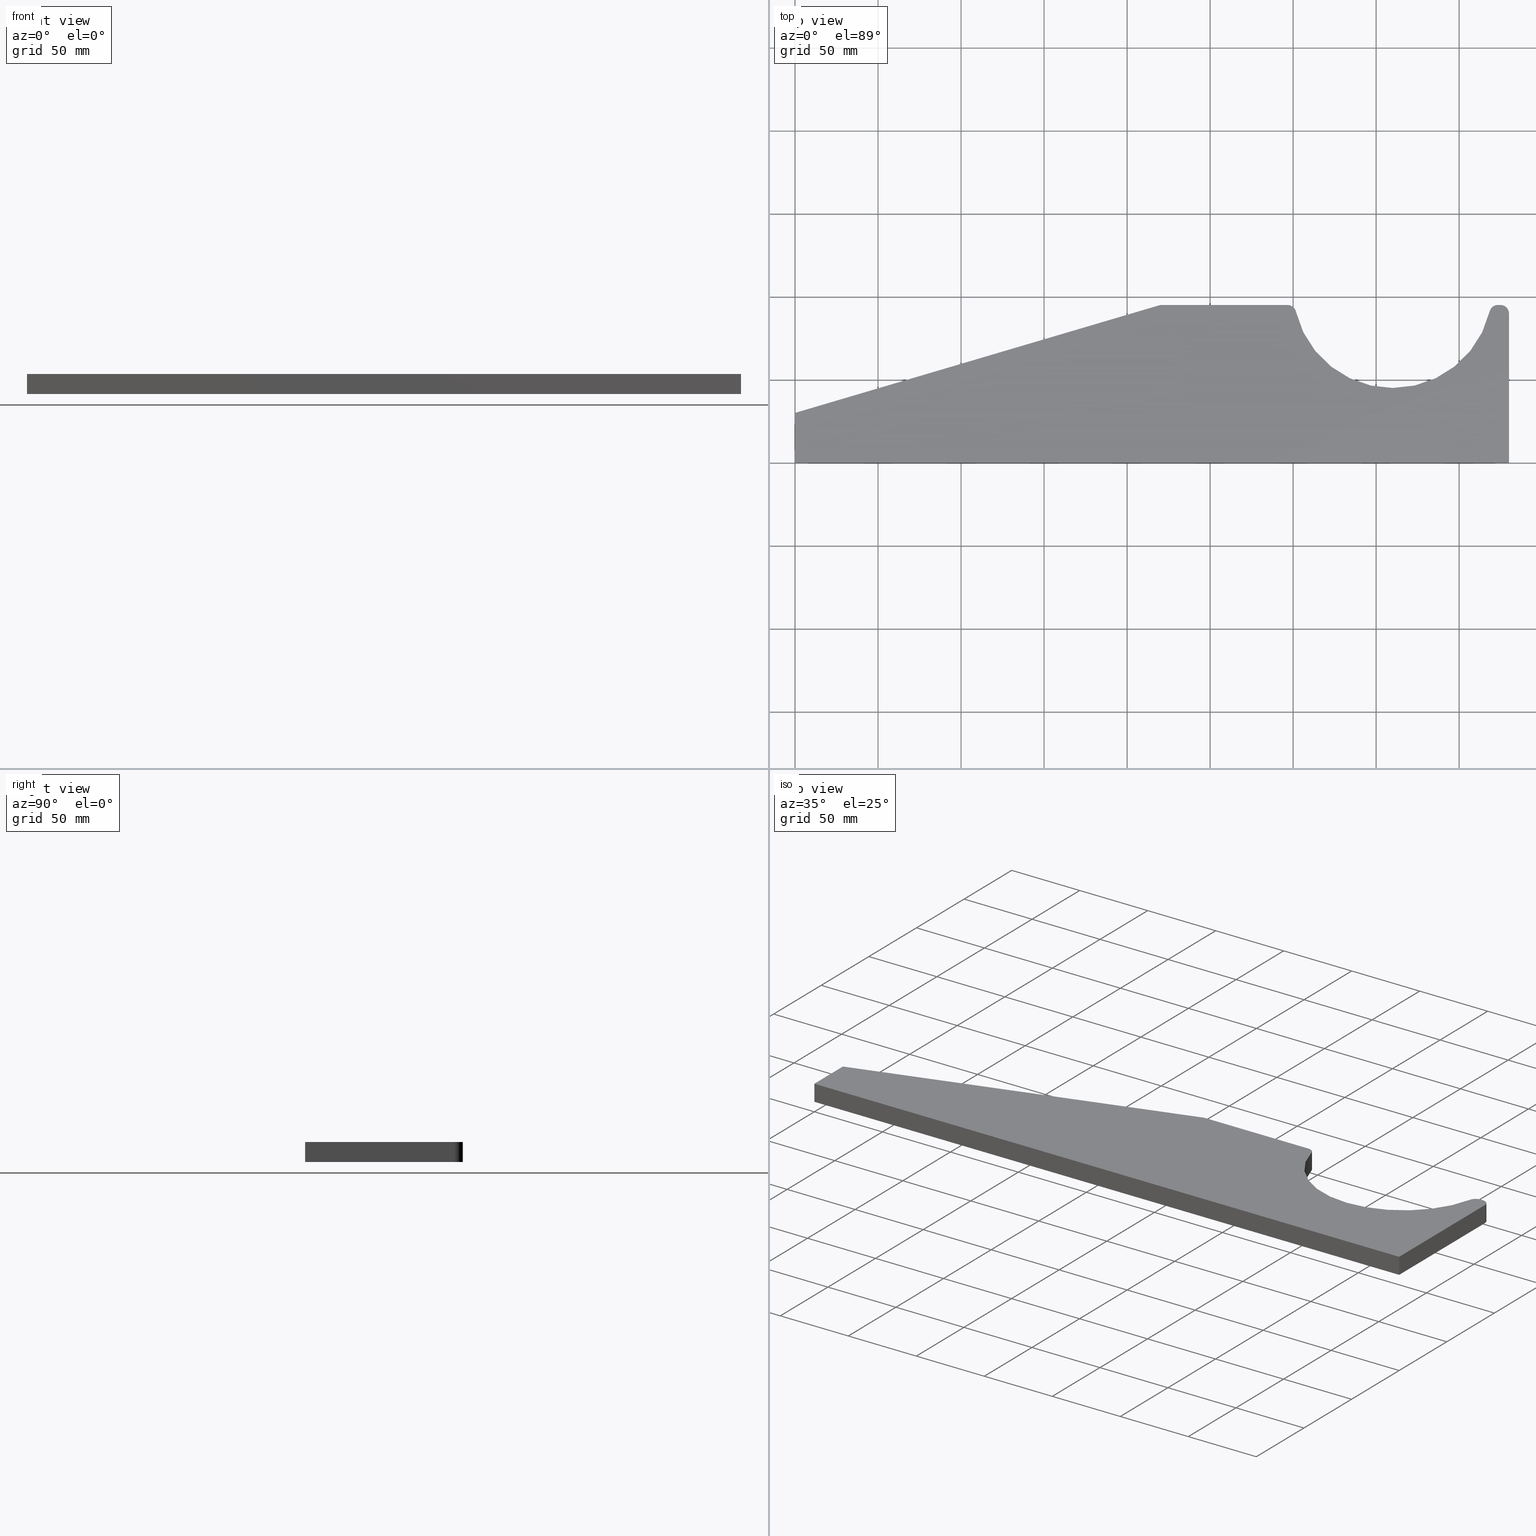
[diagram: canonical four-view strip — front | top / right | iso, engineering-drawing reading convention]
A machine part, canonical four-view strip (front | top / right | iso — engineering-drawing reading convention). The complete STEP part file that produces these views, byte-faithful:
ISO-10303-21;
HEADER;
FILE_DESCRIPTION (( 'STEP AP214' ),
    '1' );
FILE_NAME ('AltAzSide.STEP',
    '2015-06-11T08:30:23',
    ( '' ),
    ( '' ),
    'SwSTEP 2.0',
    'SolidWorks 2014',
    '' );
FILE_SCHEMA (( 'AUTOMOTIVE_DESIGN' ));
ENDSEC;

DATA;
#1 = CARTESIAN_POINT ( 'NONE',  ( 220.7231842260838200, 89.99999999999997200, -6.000000000000000000 ) ) ;
#2 = APPLICATION_PROTOCOL_DEFINITION ( 'draft international standard', 'automotive_design', 1998, #8 ) ;
#3 = ADVANCED_FACE ( 'NONE', ( #424 ), #130, .T. ) ;
#4 = DIRECTION ( 'NONE',  ( -0.0000000000000000000, -0.0000000000000000000, -1.000000000000000000 ) ) ;
#5 = CARTESIAN_POINT ( 'NONE',  ( 220.7231842260838200, 94.99999999999997200, 6.000000000000000000 ) ) ;
#6 = CARTESIAN_POINT ( 'NONE',  ( 219.3064535209968000, 94.79508854029447200, -6.000000000000000000 ) ) ;
#7 = CARTESIAN_POINT ( 'NONE',  ( 418.3805106492623600, 91.15384615384617500, 6.000000000000000000 ) ) ;
#8 = APPLICATION_CONTEXT ( 'automotive_design' ) ;
#9 = DIRECTION ( 'NONE',  ( 0.0000000000000000000, 0.0000000000000000000, 1.000000000000000000 ) ) ;
#10 = DIRECTION ( 'NONE',  ( 1.000000000000000000, 0.0000000000000000000, 0.0000000000000000000 ) ) ;
#11 = AXIS2_PLACEMENT_3D ( 'NONE', #428, #423, #422 ) ;
#12 = DIRECTION ( 'NONE',  ( -1.000000000000000000, 0.0000000000000000000, 0.0000000000000000000 ) ) ;
#13 = AXIS2_PLACEMENT_3D ( 'NONE', #391, #373, #368 ) ;
#14 = DIRECTION ( 'NONE',  ( 0.0000000000000000000, 0.0000000000000000000, -1.000000000000000000 ) ) ;
#15 = DIRECTION ( 'NONE',  ( 0.0000000000000000000, 0.0000000000000000000, 1.000000000000000000 ) ) ;
#16 = EDGE_CURVE ( 'NONE', #125, #181, #297, .T. ) ;
#17 = AXIS2_PLACEMENT_3D ( 'NONE', #357, #436, #383 ) ;
#18 = ADVANCED_FACE ( 'NONE', ( #134 ), #93, .F. ) ;
#19 = EDGE_CURVE ( 'NONE', #315, #181, #403, .T. ) ;
#20 = AXIS2_PLACEMENT_3D ( 'NONE', #137, #135, #131 ) ;
#21 = AXIS2_PLACEMENT_3D ( 'NONE', #337, #313, #311 ) ;
#22 = DIRECTION ( 'NONE',  ( -1.000000000000000000, 0.0000000000000000000, 0.0000000000000000000 ) ) ;
#23 = DIRECTION ( 'NONE',  ( 1.000000000000000000, 0.0000000000000000000, 0.0000000000000000000 ) ) ;
#24 = DIRECTION ( 'NONE',  ( 0.0000000000000000000, 0.0000000000000000000, 1.000000000000000000 ) ) ;
#25 = CARTESIAN_POINT ( 'NONE',  ( 423.2455532033675900, 90.00000000000000000, 6.000000000000000000 ) ) ;
#26 = DIRECTION ( 'NONE',  ( -0.0000000000000000000, -0.0000000000000000000, -1.000000000000000000 ) ) ;
#27 = CARTESIAN_POINT ( 'NONE',  ( 430.0000000000000000, 0.0000000000000000000, 6.000000000000000000 ) ) ;
#28 = PLANE ( 'NONE',  #400 ) ;
#29 = DIRECTION ( 'NONE',  ( -1.000000000000000000, 0.0000000000000000000, 0.0000000000000000000 ) ) ;
#30 = DIRECTION ( 'NONE',  ( 1.000000000000000000, 0.0000000000000000000, 0.0000000000000000000 ) ) ;
#31 = CARTESIAN_POINT ( 'NONE',  ( 430.0000000000000000, 95.00000000000000000, 6.000000000000000000 ) ) ;
#32 =( NAMED_UNIT ( * ) PLANE_ANGLE_UNIT ( ) SI_UNIT ( $, .RADIAN. ) );
#33 = CARTESIAN_POINT ( 'NONE',  ( 0.0000000000000000000, 0.0000000000000000000, -6.000000000000000000 ) ) ;
#34 = CARTESIAN_POINT ( 'NONE',  ( 296.7544467966324100, 94.99999999999997200, 6.000000000000000000 ) ) ;
#35 = CARTESIAN_POINT ( 'NONE',  ( 425.0000000000000000, 95.00000000000000000, 6.000000000000000000 ) ) ;
#36 =( NAMED_UNIT ( * ) SI_UNIT ( $, .STERADIAN. ) SOLID_ANGLE_UNIT ( ) );
#37 = CARTESIAN_POINT ( 'NONE',  ( 430.0000000000000000, 0.0000000000000000000, -6.000000000000000000 ) ) ;
#38 = EDGE_LOOP ( 'NONE', ( #306, #161, #323, #427 ) ) ;
#39 = ADVANCED_FACE ( 'NONE', ( #420 ), #54, .F. ) ;
#40 = DIRECTION ( 'NONE',  ( 1.000000000000000000, 0.0000000000000000000, 0.0000000000000000000 ) ) ;
#41 = EDGE_CURVE ( 'NONE', #181, #332, #342, .T. ) ;
#42 = DIRECTION ( 'NONE',  ( 0.0000000000000000000, 0.0000000000000000000, 1.000000000000000000 ) ) ;
#43 = CARTESIAN_POINT ( 'NONE',  ( 300.8392021690038400, 94.99999999999997200, -6.000000000000000000 ) ) ;
#44 = DIRECTION ( 'NONE',  ( -1.000000000000000000, 1.280332960990416700E-015, 0.0000000000000000000 ) ) ;
#45 = DIRECTION ( 'NONE',  ( 0.0000000000000000000, -0.0000000000000000000, 1.000000000000000000 ) ) ;
#46 = CARTESIAN_POINT ( 'NONE',  ( 301.6194893507376400, 91.15384615384613200, 6.000000000000000000 ) ) ;
#47 = CARTESIAN_POINT ( 'NONE',  ( 425.0000000000000000, 90.00000000000000000, 6.000000000000000000 ) ) ;
#48 = CARTESIAN_POINT ( 'NONE',  ( 296.7544467966324100, 89.99999999999997200, 6.000000000000000000 ) ) ;
#49 = APPLICATION_CONTEXT ( 'automotive_design' ) ;
#50 = DIRECTION ( 'NONE',  ( 0.0000000000000000000, 1.000000000000000000, 0.0000000000000000000 ) ) ;
#51 = DIRECTION ( 'NONE',  ( 0.0000000000000000000, 0.0000000000000000000, 1.000000000000000000 ) ) ;
#52 = EDGE_CURVE ( 'NONE', #361, #332, #441, .T. ) ;
#53 = PRODUCT_DEFINITION_CONTEXT ( 'detailed design', #8, 'design' ) ;
#54 = PLANE ( 'NONE',  #87 ) ;
#55 = CARTESIAN_POINT ( 'NONE',  ( 1.224646799147353700E-015, 30.00000000000000000, 6.000000000000000000 ) ) ;
#56 = SURFACE_SIDE_STYLE ('',( #170 ) ) ;
#57 = DIRECTION ( 'NONE',  ( -0.0000000000000000000, -0.0000000000000000000, -1.000000000000000000 ) ) ;
#58 = CARTESIAN_POINT ( 'NONE',  ( 430.0000000000000000, 0.0000000000000000000, 6.000000000000000000 ) ) ;
#59 = UNCERTAINTY_MEASURE_WITH_UNIT (LENGTH_MEASURE( 1.000000000000000100E-005 ), #81, 'distance_accuracy_value', 'NONE');
#60 = EDGE_CURVE ( 'NONE', #175, #193, #398, .T. ) ;
#61 = FILL_AREA_STYLE ('',( #217 ) ) ;
#62 = ORIENTED_EDGE ( 'NONE', *, *, #359, .F. ) ;
#63 = ORIENTED_EDGE ( 'NONE', *, *, #293, .T. ) ;
#64 = ORIENTED_EDGE ( 'NONE', *, *, #172, .T. ) ;
#65 = SURFACE_STYLE_USAGE ( .BOTH. , #56 ) ;
#66 = ORIENTED_EDGE ( 'NONE', *, *, #381, .T. ) ;
#67 = ORIENTED_EDGE ( 'NONE', *, *, #243, .F. ) ;
#68 = ORIENTED_EDGE ( 'NONE', *, *, #52, .F. ) ;
#69 = ADVANCED_FACE ( 'NONE', ( #236 ), #235, .T. ) ;
#70 = CARTESIAN_POINT ( 'NONE',  ( 0.0000000000000000000, 0.0000000000000000000, 6.000000000000000000 ) ) ;
#71 = ORIENTED_EDGE ( 'NONE', *, *, #146, .F. ) ;
#72 =( NAMED_UNIT ( * ) SI_UNIT ( $, .STERADIAN. ) SOLID_ANGLE_UNIT ( ) );
#73 =( NAMED_UNIT ( * ) PLANE_ANGLE_UNIT ( ) SI_UNIT ( $, .RADIAN. ) );
#74 =( LENGTH_UNIT ( ) NAMED_UNIT ( * ) SI_UNIT ( .MILLI., .METRE. ) );
#75 = SURFACE_STYLE_USAGE ( .BOTH. , #82 ) ;
#76 = AXIS2_PLACEMENT_3D ( 'NONE', #393, #195, #154 ) ;
#77 = CARTESIAN_POINT ( 'NONE',  ( 0.0000000000000000000, 0.0000000000000000000, 6.000000000000000000 ) ) ;
#78 = DIRECTION ( 'NONE',  ( -1.000000000000000000, 1.280332960990416700E-015, 0.0000000000000000000 ) ) ;
#79 = DIRECTION ( 'NONE',  ( 4.082155997157845100E-017, 1.000000000000000000, 0.0000000000000000000 ) ) ;
#80 = CARTESIAN_POINT ( 'NONE',  ( 360.0000000000000000, 105.0000000000000000, -6.000000000000000000 ) ) ;
#81 =( LENGTH_UNIT ( ) NAMED_UNIT ( * ) SI_UNIT ( .MILLI., .METRE. ) );
#82 = SURFACE_SIDE_STYLE ('',( #189 ) ) ;
#83 = PRODUCT_DEFINITION_SHAPE ( 'NONE', 'NONE',  #340 ) ;
#84 = DIRECTION ( 'NONE',  ( 1.000000000000000000, -4.082155997157845100E-017, 0.0000000000000000000 ) ) ;
#85 = FILL_AREA_STYLE ('',( #128 ) ) ;
#86 = CARTESIAN_POINT ( 'NONE',  ( 425.0000000000000000, 95.00000000000000000, 6.000000000000000000 ) ) ;
#87 = AXIS2_PLACEMENT_3D ( 'NONE', #77, #50, #45 ) ;
#88 = APPLICATION_PROTOCOL_DEFINITION ( 'draft international standard', 'automotive_design', 1998, #49 ) ;
#89 = EDGE_CURVE ( 'NONE', #256, #215, #289, .T. ) ;
#90 = ADVANCED_FACE ( 'NONE', ( #288 ), #339, .F. ) ;
#91 = ORIENTED_EDGE ( 'NONE', *, *, #151, .F. ) ;
#92 = DIRECTION ( 'NONE',  ( 1.000000000000000000, 0.0000000000000000000, 0.0000000000000000000 ) ) ;
#93 = PLANE ( 'NONE',  #299 ) ;
#94 = DIRECTION ( 'NONE',  ( 1.000000000000000000, 0.0000000000000000000, -0.0000000000000000000 ) ) ;
#95 = CARTESIAN_POINT ( 'NONE',  ( 423.2455532033675900, 90.00000000000000000, 6.000000000000000000 ) ) ;
#96 = DIRECTION ( 'NONE',  ( 0.0000000000000000000, 0.0000000000000000000, 1.000000000000000000 ) ) ;
#97 = EDGE_CURVE ( 'NONE', #315, #361, #438, .T. ) ;
#98 = CARTESIAN_POINT ( 'NONE',  ( 220.7231842260838200, 89.99999999999997200, 6.000000000000000000 ) ) ;
#99 = DIRECTION ( 'NONE',  ( -4.082155997157845700E-017, -1.000000000000000000, 0.0000000000000000000 ) ) ;
#100 = CARTESIAN_POINT ( 'NONE',  ( 1.224646799147353700E-015, 30.00000000000000000, -6.000000000000000000 ) ) ;
#101 = EDGE_CURVE ( 'NONE', #186, #315, #397, .T. ) ;
#102 = CARTESIAN_POINT ( 'NONE',  ( 0.0000000000000000000, 0.0000000000000000000, 6.000000000000000000 ) ) ;
#103 = AXIS2_PLACEMENT_3D ( 'NONE', #122, #119, #116 ) ;
#104 = DIRECTION ( 'NONE',  ( -1.000000000000000000, 0.0000000000000000000, 0.0000000000000000000 ) ) ;
#105 =( NAMED_UNIT ( * ) SI_UNIT ( $, .STERADIAN. ) SOLID_ANGLE_UNIT ( ) );
#106 = PLANE ( 'NONE',  #194 ) ;
#107 = DIRECTION ( 'NONE',  ( 0.0000000000000000000, 0.0000000000000000000, -1.000000000000000000 ) ) ;
#108 = DIRECTION ( 'NONE',  ( -0.0000000000000000000, -0.0000000000000000000, 1.000000000000000000 ) ) ;
#109 = CARTESIAN_POINT ( 'NONE',  ( 423.2455532033675900, 95.00000000000001400, 6.000000000000000000 ) ) ;
#110 = EDGE_CURVE ( 'NONE', #186, #125, #283, .T. ) ;
#111 = AXIS2_PLACEMENT_3D ( 'NONE', #316, #308, #305 ) ;
#112 = ADVANCED_BREP_SHAPE_REPRESENTATION ( 'AltAzSide', ( #321, #341 ), #392 ) ;
#113 = ADVANCED_FACE ( 'NONE', ( #278 ), #274, .T. ) ;
#114 = ORIENTED_EDGE ( 'NONE', *, *, #275, .F. ) ;
#115 = DIRECTION ( 'NONE',  ( -1.000000000000000000, 0.0000000000000000000, 0.0000000000000000000 ) ) ;
#116 = DIRECTION ( 'NONE',  ( 1.000000000000000000, -2.775557561562889000E-015, 0.0000000000000000000 ) ) ;
#117 = CARTESIAN_POINT ( 'NONE',  ( 1.224646799147353700E-015, 30.00000000000000000, -6.000000000000000000 ) ) ;
#118 = CARTESIAN_POINT ( 'NONE',  ( 220.7231842260838200, 89.99999999999997200, 6.000000000000000000 ) ) ;
#119 = DIRECTION ( 'NONE',  ( -0.0000000000000000000, -0.0000000000000000000, -1.000000000000000000 ) ) ;
#120 = VERTEX_POINT ( 'NONE', #204 ) ;
#121 = EDGE_CURVE ( 'NONE', #332, #256, #286, .T. ) ;
#122 = CARTESIAN_POINT ( 'NONE',  ( 423.2455532033675900, 90.00000000000000000, -6.000000000000000000 ) ) ;
#123 = CARTESIAN_POINT ( 'NONE',  ( 220.0000000000000000, 94.99999999999997200, -6.000000000000000000 ) ) ;
#124 =( LENGTH_UNIT ( ) NAMED_UNIT ( * ) SI_UNIT ( .MILLI., .METRE. ) );
#125 = VERTEX_POINT ( 'NONE', #117 ) ;
#126 = VECTOR ( 'NONE', #26, 1000.000000000000000 ) ;
#127 = CARTESIAN_POINT ( 'NONE',  ( 1.224646799147353700E-015, 30.00000000000000000, 6.000000000000000000 ) ) ;
#128 = FILL_AREA_STYLE_COLOUR ( '', #196 ) ;
#129 =( NAMED_UNIT ( * ) PLANE_ANGLE_UNIT ( ) SI_UNIT ( $, .RADIAN. ) );
#130 = CYLINDRICAL_SURFACE ( 'NONE', #413, 5.000000000000004400 ) ;
#131 = DIRECTION ( 'NONE',  ( 1.000000000000000000, 0.0000000000000000000, 0.0000000000000000000 ) ) ;
#132 = DIRECTION ( 'NONE',  ( 1.000000000000000000, 0.0000000000000000000, 0.0000000000000000000 ) ) ;
#133 = EDGE_CURVE ( 'NONE', #442, #421, #279, .T. ) ;
#134 = FACE_OUTER_BOUND ( 'NONE', #416, .T. ) ;
#135 = DIRECTION ( 'NONE',  ( -0.0000000000000000000, -0.0000000000000000000, -1.000000000000000000 ) ) ;
#136 = ORIENTED_EDGE ( 'NONE', *, *, #142, .T. ) ;
#137 = CARTESIAN_POINT ( 'NONE',  ( 425.0000000000000000, 90.00000000000000000, -6.000000000000000000 ) ) ;
#138 = CARTESIAN_POINT ( 'NONE',  ( 296.7544467966324100, 89.99999999999997200, -6.000000000000000000 ) ) ;
#139 = EDGE_CURVE ( 'NONE', #421, #179, #277, .T. ) ;
#140 = ADVANCED_FACE ( 'NONE', ( #261 ), #106, .F. ) ;
#141 = SHAPE_DEFINITION_REPRESENTATION ( #83, #112 ) ;
#142 = EDGE_CURVE ( 'NONE', #336, #179, #260, .T. ) ;
#143 = DIRECTION ( 'NONE',  ( -0.0000000000000000000, -0.0000000000000000000, -1.000000000000000000 ) ) ;
#144 = DIRECTION ( 'NONE',  ( -0.0000000000000000000, -0.0000000000000000000, -1.000000000000000000 ) ) ;
#145 = DIRECTION ( 'NONE',  ( -0.9590177080589004100, -0.2833461410174023000, 0.0000000000000000000 ) ) ;
#146 = EDGE_CURVE ( 'NONE', #336, #442, #266, .T. ) ;
#147 = PRESENTATION_STYLE_ASSIGNMENT (( #65 ) ) ;
#148 = COLOUR_RGB ( '',1.000000000000000000, 1.000000000000000000, 1.000000000000000000 ) ;
#149 = CARTESIAN_POINT ( 'NONE',  ( 0.0000000000000000000, 0.0000000000000000000, 0.0000000000000000000 ) ) ;
#150 = CARTESIAN_POINT ( 'NONE',  ( 430.0000000000000000, 95.00000000000000000, -6.000000000000000000 ) ) ;
#151 = EDGE_CURVE ( 'NONE', #290, #257, #252, .T. ) ;
#152 = DIRECTION ( 'NONE',  ( 1.000000000000000000, 0.0000000000000000000, -0.0000000000000000000 ) ) ;
#153 = ORIENTED_EDGE ( 'NONE', *, *, #326, .T. ) ;
#154 = DIRECTION ( 'NONE',  ( -1.000000000000000000, 0.0000000000000000000, 0.0000000000000000000 ) ) ;
#155 = ORIENTED_EDGE ( 'NONE', *, *, #89, .T. ) ;
#156 = DIRECTION ( 'NONE',  ( 0.0000000000000000000, 0.0000000000000000000, 1.000000000000000000 ) ) ;
#157 = DIRECTION ( 'NONE',  ( -0.0000000000000000000, -0.0000000000000000000, -1.000000000000000000 ) ) ;
#158 = CYLINDRICAL_SURFACE ( 'NONE', #380, 60.00000000000000000 ) ;
#159 = PLANE ( 'NONE',  #330 ) ;
#160 = CARTESIAN_POINT ( 'NONE',  ( 430.0000000000000000, 0.0000000000000000000, -6.000000000000000000 ) ) ;
#161 = ORIENTED_EDGE ( 'NONE', *, *, #176, .T. ) ;
#162 = CIRCLE ( 'NONE', #386, 5.000000000000004400 ) ;
#163 = CIRCLE ( 'NONE', #395, 5.000000000000004400 ) ;
#164 = EDGE_CURVE ( 'NONE', #257, #284, #264, .T. ) ;
#165 = VECTOR ( 'NONE', #344, 1000.000000000000000 ) ;
#166 = FACE_OUTER_BOUND ( 'NONE', #365, .T. ) ;
#167 = CIRCLE ( 'NONE', #17, 5.000000000000004400 ) ;
#168 = EDGE_LOOP ( 'NONE', ( #352, #401, #216, #317, #91, #180, #255, #191, #325, #222, #346 ) ) ;
#169 = CYLINDRICAL_SURFACE ( 'NONE', #405, 5.000000000000004400 ) ;
#170 = SURFACE_STYLE_FILL_AREA ( #61 ) ;
#171 = LINE ( 'NONE', #7, #165 ) ;
#172 = EDGE_CURVE ( 'NONE', #120, #284, #250, .T. ) ;
#173 = FACE_OUTER_BOUND ( 'NONE', #294, .T. ) ;
#174 = CIRCLE ( 'NONE', #412, 5.000000000000004400 ) ;
#175 = VERTEX_POINT ( 'NONE', #410 ) ;
#176 = EDGE_CURVE ( 'NONE', #193, #371, #244, .T. ) ;
#177 = ADVANCED_FACE ( 'NONE', ( #249 ), #385, .F. ) ;
#178 = AXIS2_PLACEMENT_3D ( 'NONE', #390, #389, #387 ) ;
#179 = VERTEX_POINT ( 'NONE', #379 ) ;
#180 = ORIENTED_EDGE ( 'NONE', *, *, #307, .T. ) ;
#181 = VERTEX_POINT ( 'NONE', #350 ) ;
#182 = ORIENTED_EDGE ( 'NONE', *, *, #110, .T. ) ;
#183 = ORIENTED_EDGE ( 'NONE', *, *, #151, .T. ) ;
#184 = ORIENTED_EDGE ( 'NONE', *, *, #300, .F. ) ;
#185 = CARTESIAN_POINT ( 'NONE',  ( 1.224646799147353700E-015, 30.00000000000000000, 6.000000000000000000 ) ) ;
#186 = VERTEX_POINT ( 'NONE', #351 ) ;
#187 = PRESENTATION_STYLE_ASSIGNMENT (( #75 ) ) ;
#188 = UNCERTAINTY_MEASURE_WITH_UNIT (LENGTH_MEASURE( 1.000000000000000100E-005 ), #74, 'distance_accuracy_value', 'NONE');
#189 = SURFACE_STYLE_FILL_AREA ( #85 ) ;
#190 = CIRCLE ( 'NONE', #407, 5.000000000000004400 ) ;
#191 = ORIENTED_EDGE ( 'NONE', *, *, #300, .T. ) ;
#192 = DIRECTION ( 'NONE',  ( 0.0000000000000000000, 0.0000000000000000000, -1.000000000000000000 ) ) ;
#193 = VERTEX_POINT ( 'NONE', #348 ) ;
#194 = AXIS2_PLACEMENT_3D ( 'NONE', #80, #51, #94 ) ;
#195 = DIRECTION ( 'NONE',  ( 0.0000000000000000000, 0.0000000000000000000, -1.000000000000000000 ) ) ;
#196 = COLOUR_RGB ( '',1.000000000000000000, 1.000000000000000000, 1.000000000000000000 ) ;
#197 = CARTESIAN_POINT ( 'NONE',  ( 423.2455532033675900, 95.00000000000001400, -6.000000000000000000 ) ) ;
#198 = ORIENTED_EDGE ( 'NONE', *, *, #310, .T. ) ;
#199 = EDGE_LOOP ( 'NONE', ( #206, #430, #426, #67 ) ) ;
#200 = VECTOR ( 'NONE', #145, 1000.000000000000000 ) ;
#201 = CIRCLE ( 'NONE', #318, 5.000000000000004400 ) ;
#202 = ORIENTED_EDGE ( 'NONE', *, *, #101, .T. ) ;
#203 = ORIENTED_EDGE ( 'NONE', *, *, #97, .F. ) ;
#204 = CARTESIAN_POINT ( 'NONE',  ( 418.3805106492623600, 91.15384615384617500, 6.000000000000000000 ) ) ;
#205 = CARTESIAN_POINT ( 'NONE',  ( 360.0000000000000000, 105.0000000000000000, 6.000000000000000000 ) ) ;
#206 = ORIENTED_EDGE ( 'NONE', *, *, #394, .F. ) ;
#207 = FACE_OUTER_BOUND ( 'NONE', #199, .T. ) ;
#208 = EDGE_CURVE ( 'NONE', #361, #215, #234, .T. ) ;
#209 = CIRCLE ( 'NONE', #103, 5.000000000000004400 ) ;
#210 = CARTESIAN_POINT ( 'NONE',  ( 219.3064535209968000, 94.79508854029447200, 6.000000000000000000 ) ) ;
#211 = ORIENTED_EDGE ( 'NONE', *, *, #176, .F. ) ;
#212 = CARTESIAN_POINT ( 'NONE',  ( 0.0000000000000000000, 0.0000000000000000000, 6.000000000000000000 ) ) ;
#213 = EDGE_LOOP ( 'NONE', ( #374, #226, #184, #71 ) ) ;
#214 = VECTOR ( 'NONE', #192, 1000.000000000000000 ) ;
#215 = VERTEX_POINT ( 'NONE', #335 ) ;
#216 = ORIENTED_EDGE ( 'NONE', *, *, #60, .F. ) ;
#217 = FILL_AREA_STYLE_COLOUR ( '', #148 ) ;
#218 = LINE ( 'NONE', #123, #200 ) ;
#219 = FACE_OUTER_BOUND ( 'NONE', #232, .T. ) ;
#220 = ORIENTED_EDGE ( 'NONE', *, *, #237, .T. ) ;
#221 = ORIENTED_EDGE ( 'NONE', *, *, #381, .F. ) ;
#222 = ORIENTED_EDGE ( 'NONE', *, *, #41, .F. ) ;
#223 = VECTOR ( 'NONE', #258, 1000.000000000000000 ) ;
#224 = CIRCLE ( 'NONE', #20, 5.000000000000004400 ) ;
#225 = VECTOR ( 'NONE', #331, 1000.000000000000000 ) ;
#226 = ORIENTED_EDGE ( 'NONE', *, *, #89, .F. ) ;
#227 = ADVANCED_FACE ( 'NONE', ( #245 ), #319, .F. ) ;
#228 = LINE ( 'NONE', #238, #214 ) ;
#229 = VECTOR ( 'NONE', #22, 1000.000000000000000 ) ;
#230 = LINE ( 'NONE', #298, #240 ) ;
#231 = LINE ( 'NONE', #301, #223 ) ;
#232 = EDGE_LOOP ( 'NONE', ( #220, #366, #239, #202, #265, #303, #153, #136, #415, #64, #292 ) ) ;
#233 = LINE ( 'NONE', #302, #225 ) ;
#234 = LINE ( 'NONE', #367, #246 ) ;
#235 = CYLINDRICAL_SURFACE ( 'NONE', #349, 5.000000000000004400 ) ;
#236 = FACE_OUTER_BOUND ( 'NONE', #287, .T. ) ;
#237 = EDGE_CURVE ( 'NONE', #345, #371, #230, .T. ) ;
#238 = CARTESIAN_POINT ( 'NONE',  ( 219.3064535209968000, 94.79508854029447200, 6.000000000000000000 ) ) ;
#239 = ORIENTED_EDGE ( 'NONE', *, *, #275, .T. ) ;
#240 = VECTOR ( 'NONE', #276, 1000.000000000000000 ) ;
#241 = VECTOR ( 'NONE', #382, 1000.000000000000000 ) ;
#242 = DIRECTION ( 'NONE',  ( -4.082155997157845700E-017, -1.000000000000000000, 0.0000000000000000000 ) ) ;
#243 = EDGE_CURVE ( 'NONE', #345, #175, #233, .T. ) ;
#244 = LINE ( 'NONE', #435, #241 ) ;
#245 = FACE_OUTER_BOUND ( 'NONE', #38, .T. ) ;
#246 = VECTOR ( 'NONE', #347, 1000.000000000000000 ) ;
#247 = CARTESIAN_POINT ( 'NONE',  ( 418.3805106492623600, 91.15384615384617500, -6.000000000000000000 ) ) ;
#248 = VECTOR ( 'NONE', #439, 1000.000000000000000 ) ;
#249 = FACE_OUTER_BOUND ( 'NONE', #377, .T. ) ;
#250 = CIRCLE ( 'NONE', #178, 60.00000000000000000 ) ;
#251 = VECTOR ( 'NONE', #14, 1000.000000000000000 ) ;
#252 = CIRCLE ( 'NONE', #11, 60.00000000000000000 ) ;
#253 = ORIENTED_EDGE ( 'NONE', *, *, #314, .F. ) ;
#254 = DIRECTION ( 'NONE',  ( 1.000000000000000000, -2.775557561562889000E-015, 0.0000000000000000000 ) ) ;
#255 = ORIENTED_EDGE ( 'NONE', *, *, #133, .F. ) ;
#256 = VERTEX_POINT ( 'NONE', #262 ) ;
#257 = VERTEX_POINT ( 'NONE', #267 ) ;
#258 = DIRECTION ( 'NONE',  ( -0.9590177080589004100, -0.2833461410174023000, 0.0000000000000000000 ) ) ;
#259 = ORIENTED_EDGE ( 'NONE', *, *, #19, .T. ) ;
#260 = LINE ( 'NONE', #31, #269 ) ;
#261 = FACE_OUTER_BOUND ( 'NONE', #168, .T. ) ;
#262 = CARTESIAN_POINT ( 'NONE',  ( 430.0000000000000000, 90.00000000000000000, -6.000000000000000000 ) ) ;
#263 = CARTESIAN_POINT ( 'NONE',  ( 425.0000000000000000, 95.00000000000000000, -6.000000000000000000 ) ) ;
#264 = LINE ( 'NONE', #46, #248 ) ;
#265 = ORIENTED_EDGE ( 'NONE', *, *, #97, .T. ) ;
#266 = LINE ( 'NONE', #86, #251 ) ;
#267 = CARTESIAN_POINT ( 'NONE',  ( 301.6194893507376400, 91.15384615384613200, -6.000000000000000000 ) ) ;
#268 = VECTOR ( 'NONE', #78, 1000.000000000000000 ) ;
#269 = VECTOR ( 'NONE', #44, 1000.000000000000000 ) ;
#270 = ORIENTED_EDGE ( 'NONE', *, *, #172, .F. ) ;
#271 = VECTOR ( 'NONE', #304, 1000.000000000000000 ) ;
#272 = CARTESIAN_POINT ( 'NONE',  ( 301.6194893507376400, 91.15384615384613200, 6.000000000000000000 ) ) ;
#273 = DIRECTION ( 'NONE',  ( -0.0000000000000000000, -0.0000000000000000000, -1.000000000000000000 ) ) ;
#274 = CYLINDRICAL_SURFACE ( 'NONE', #76, 5.000000000000004400 ) ;
#275 = EDGE_CURVE ( 'NONE', #291, #186, #231, .T. ) ;
#276 = DIRECTION ( 'NONE',  ( -1.000000000000000000, 0.0000000000000000000, 0.0000000000000000000 ) ) ;
#277 = LINE ( 'NONE', #109, #281 ) ;
#278 = FACE_OUTER_BOUND ( 'NONE', #213, .T. ) ;
#279 = LINE ( 'NONE', #150, #268 ) ;
#280 = VECTOR ( 'NONE', #144, 1000.000000000000000 ) ;
#281 = VECTOR ( 'NONE', #108, 1000.000000000000000 ) ;
#282 = VECTOR ( 'NONE', #242, 1000.000000000000000 ) ;
#283 = LINE ( 'NONE', #185, #280 ) ;
#284 = VERTEX_POINT ( 'NONE', #272 ) ;
#285 = ORIENTED_EDGE ( 'NONE', *, *, #19, .F. ) ;
#286 = LINE ( 'NONE', #160, #271 ) ;
#287 = EDGE_LOOP ( 'NONE', ( #62, #358, #399, #221 ) ) ;
#288 = FACE_OUTER_BOUND ( 'NONE', #408, .T. ) ;
#289 = LINE ( 'NONE', #409, #384 ) ;
#290 = VERTEX_POINT ( 'NONE', #247 ) ;
#291 = VERTEX_POINT ( 'NONE', #210 ) ;
#292 = ORIENTED_EDGE ( 'NONE', *, *, #394, .T. ) ;
#293 = EDGE_CURVE ( 'NONE', #291, #376, #228, .T. ) ;
#294 = EDGE_LOOP ( 'NONE', ( #418, #155, #375, #419 ) ) ;
#295 = ADVANCED_FACE ( 'NONE', ( #219 ), #159, .T. ) ;
#296 = VECTOR ( 'NONE', #57, 1000.000000000000000 ) ;
#297 = LINE ( 'NONE', #100, #312 ) ;
#298 = CARTESIAN_POINT ( 'NONE',  ( 300.8392021690038400, 94.99999999999997200, 6.000000000000000000 ) ) ;
#299 = AXIS2_PLACEMENT_3D ( 'NONE', #127, #84, #79 ) ;
#300 = EDGE_CURVE ( 'NONE', #442, #256, #224, .T. ) ;
#301 = CARTESIAN_POINT ( 'NONE',  ( 220.0000000000000000, 94.99999999999997200, 6.000000000000000000 ) ) ;
#302 = CARTESIAN_POINT ( 'NONE',  ( 296.7544467966324100, 94.99999999999997200, 6.000000000000000000 ) ) ;
#303 = ORIENTED_EDGE ( 'NONE', *, *, #208, .T. ) ;
#304 = DIRECTION ( 'NONE',  ( 0.0000000000000000000, 1.000000000000000000, 0.0000000000000000000 ) ) ;
#305 = DIRECTION ( 'NONE',  ( 0.9590177080589003000, 0.2833461410174023000, 0.0000000000000000000 ) ) ;
#306 = ORIENTED_EDGE ( 'NONE', *, *, #60, .T. ) ;
#307 = EDGE_CURVE ( 'NONE', #290, #421, #209, .T. ) ;
#308 = DIRECTION ( 'NONE',  ( 0.2833461410174023500, -0.9590177080589004100, 0.0000000000000000000 ) ) ;
#309 = ORIENTED_EDGE ( 'NONE', *, *, #139, .T. ) ;
#310 = EDGE_CURVE ( 'NONE', #376, #125, #218, .T. ) ;
#311 = DIRECTION ( 'NONE',  ( 0.0000000000000000000, -0.0000000000000000000, -1.000000000000000000 ) ) ;
#312 = VECTOR ( 'NONE', #99, 1000.000000000000000 ) ;
#313 = DIRECTION ( 'NONE',  ( 0.0000000000000000000, -1.000000000000000000, 0.0000000000000000000 ) ) ;
#314 = EDGE_CURVE ( 'NONE', #371, #291, #201, .T. ) ;
#315 = VERTEX_POINT ( 'NONE', #102 ) ;
#316 = CARTESIAN_POINT ( 'NONE',  ( 220.0000000000000000, 94.99999999999997200, 6.000000000000000000 ) ) ;
#317 = ORIENTED_EDGE ( 'NONE', *, *, #443, .T. ) ;
#318 = AXIS2_PLACEMENT_3D ( 'NONE', #98, #96, #92 ) ;
#319 = PLANE ( 'NONE',  #21 ) ;
#320 = EDGE_LOOP ( 'NONE', ( #253, #211, #322, #329 ) ) ;
#321 = MANIFOLD_SOLID_BREP ( 'Fillet1', #324 ) ;
#322 = ORIENTED_EDGE ( 'NONE', *, *, #396, .F. ) ;
#323 = ORIENTED_EDGE ( 'NONE', *, *, #237, .F. ) ;
#324 = CLOSED_SHELL ( 'NONE', ( #18, #39, #364, #177, #404, #227, #90, #295, #140, #3, #328, #69, #113 ) ) ;
#325 = ORIENTED_EDGE ( 'NONE', *, *, #121, .F. ) ;
#326 = EDGE_CURVE ( 'NONE', #215, #336, #174, .T. ) ;
#327 = PRODUCT_RELATED_PRODUCT_CATEGORY ( 'part', '', ( #333 ) ) ;
#328 = ADVANCED_FACE ( 'NONE', ( #207 ), #169, .T. ) ;
#329 = ORIENTED_EDGE ( 'NONE', *, *, #293, .F. ) ;
#330 = AXIS2_PLACEMENT_3D ( 'NONE', #205, #156, #152 ) ;
#331 = DIRECTION ( 'NONE',  ( 0.0000000000000000000, 0.0000000000000000000, -1.000000000000000000 ) ) ;
#332 = VERTEX_POINT ( 'NONE', #37 ) ;
#333 = PRODUCT ( 'AltAzSide', 'AltAzSide', '', ( #440 ) ) ;
#334 = DIRECTION ( 'NONE',  ( -0.0000000000000000000, -0.0000000000000000000, 1.000000000000000000 ) ) ;
#335 = CARTESIAN_POINT ( 'NONE',  ( 430.0000000000000000, 90.00000000000000000, 6.000000000000000000 ) ) ;
#336 = VERTEX_POINT ( 'NONE', #35 ) ;
#337 = CARTESIAN_POINT ( 'NONE',  ( 300.8392021690038400, 94.99999999999997200, 6.000000000000000000 ) ) ;
#338 = PRODUCT_DEFINITION_FORMATION_WITH_SPECIFIED_SOURCE ( 'ANY', '', #333, .NOT_KNOWN. ) ;
#339 = PLANE ( 'NONE',  #111 ) ;
#340 = PRODUCT_DEFINITION ( 'UNKNOWN', '', #338, #53 ) ;
#341 = AXIS2_PLACEMENT_3D ( 'NONE', #149, #15, #10 ) ;
#342 = LINE ( 'NONE', #33, #411 ) ;
#343 = DIRECTION ( 'NONE',  ( 1.000000000000000000, 0.0000000000000000000, 0.0000000000000000000 ) ) ;
#344 = DIRECTION ( 'NONE',  ( -0.0000000000000000000, -0.0000000000000000000, -1.000000000000000000 ) ) ;
#345 = VERTEX_POINT ( 'NONE', #34 ) ;
#346 = ORIENTED_EDGE ( 'NONE', *, *, #16, .F. ) ;
#347 = DIRECTION ( 'NONE',  ( 0.0000000000000000000, 1.000000000000000000, 0.0000000000000000000 ) ) ;
#348 = CARTESIAN_POINT ( 'NONE',  ( 220.7231842260838200, 94.99999999999997200, -6.000000000000000000 ) ) ;
#349 = AXIS2_PLACEMENT_3D ( 'NONE', #95, #4, #29 ) ;
#350 = CARTESIAN_POINT ( 'NONE',  ( 0.0000000000000000000, 0.0000000000000000000, -6.000000000000000000 ) ) ;
#351 = CARTESIAN_POINT ( 'NONE',  ( 1.224646799147353700E-015, 30.00000000000000000, 6.000000000000000000 ) ) ;
#352 = ORIENTED_EDGE ( 'NONE', *, *, #310, .F. ) ;
#353 = DIRECTION ( 'NONE',  ( -1.000000000000000000, 0.0000000000000000000, 0.0000000000000000000 ) ) ;
#354 = ORIENTED_EDGE ( 'NONE', *, *, #41, .T. ) ;
#355 =( GEOMETRIC_REPRESENTATION_CONTEXT ( 3 ) GLOBAL_UNCERTAINTY_ASSIGNED_CONTEXT ( ( #59 ) ) GLOBAL_UNIT_ASSIGNED_CONTEXT ( ( #81, #32, #36 ) ) REPRESENTATION_CONTEXT ( 'NONE', 'WORKASPACE' ) );
#356 = EDGE_LOOP ( 'NONE', ( #354, #68, #203, #259 ) ) ;
#357 = CARTESIAN_POINT ( 'NONE',  ( 296.7544467966324100, 89.99999999999997200, 6.000000000000000000 ) ) ;
#358 = ORIENTED_EDGE ( 'NONE', *, *, #139, .F. ) ;
#359 = EDGE_CURVE ( 'NONE', #179, #120, #190, .T. ) ;
#360 = ORIENTED_EDGE ( 'NONE', *, *, #142, .F. ) ;
#361 = VERTEX_POINT ( 'NONE', #58 ) ;
#362 = ORIENTED_EDGE ( 'NONE', *, *, #16, .T. ) ;
#363 = MECHANICAL_DESIGN_GEOMETRIC_PRESENTATION_REPRESENTATION (  '', ( #372 ), #355 ) ;
#364 = ADVANCED_FACE ( 'NONE', ( #173 ), #28, .F. ) ;
#365 = EDGE_LOOP ( 'NONE', ( #183, #369, #270, #66 ) ) ;
#366 = ORIENTED_EDGE ( 'NONE', *, *, #314, .T. ) ;
#367 = CARTESIAN_POINT ( 'NONE',  ( 430.0000000000000000, 0.0000000000000000000, 6.000000000000000000 ) ) ;
#368 = DIRECTION ( 'NONE',  ( 1.000000000000000000, -1.280332960990416500E-015, 0.0000000000000000000 ) ) ;
#369 = ORIENTED_EDGE ( 'NONE', *, *, #164, .T. ) ;
#370 = PRESENTATION_LAYER_ASSIGNMENT (  '', '', ( #372 ) ) ;
#371 = VERTEX_POINT ( 'NONE', #5 ) ;
#372 = STYLED_ITEM ( 'NONE', ( #147 ), #112 ) ;
#373 = DIRECTION ( 'NONE',  ( -1.280332960990416500E-015, -1.000000000000000000, 0.0000000000000000000 ) ) ;
#374 = ORIENTED_EDGE ( 'NONE', *, *, #326, .F. ) ;
#375 = ORIENTED_EDGE ( 'NONE', *, *, #208, .F. ) ;
#376 = VERTEX_POINT ( 'NONE', #6 ) ;
#377 = EDGE_LOOP ( 'NONE', ( #437, #309, #360, #431 ) ) ;
#378 = CARTESIAN_POINT ( 'NONE',  ( 430.0000000000000000, 0.0000000000000000000, 6.000000000000000000 ) ) ;
#379 = CARTESIAN_POINT ( 'NONE',  ( 423.2455532033675900, 95.00000000000001400, 6.000000000000000000 ) ) ;
#380 = AXIS2_PLACEMENT_3D ( 'NONE', #429, #433, #353 ) ;
#381 = EDGE_CURVE ( 'NONE', #120, #290, #171, .T. ) ;
#382 = DIRECTION ( 'NONE',  ( -0.0000000000000000000, -0.0000000000000000000, 1.000000000000000000 ) ) ;
#383 = DIRECTION ( 'NONE',  ( 1.000000000000000000, 0.0000000000000000000, 0.0000000000000000000 ) ) ;
#384 = VECTOR ( 'NONE', #334, 1000.000000000000000 ) ;
#385 = PLANE ( 'NONE',  #13 ) ;
#386 = AXIS2_PLACEMENT_3D ( 'NONE', #138, #157, #132 ) ;
#387 = DIRECTION ( 'NONE',  ( 1.000000000000000000, 0.0000000000000000000, 0.0000000000000000000 ) ) ;
#388 = VECTOR ( 'NONE', #343, 1000.000000000000000 ) ;
#389 = DIRECTION ( 'NONE',  ( -0.0000000000000000000, -0.0000000000000000000, -1.000000000000000000 ) ) ;
#390 = CARTESIAN_POINT ( 'NONE',  ( 360.0000000000000000, 105.0000000000000000, 6.000000000000000000 ) ) ;
#391 = CARTESIAN_POINT ( 'NONE',  ( 430.0000000000000000, 95.00000000000000000, 6.000000000000000000 ) ) ;
#392 =( GEOMETRIC_REPRESENTATION_CONTEXT ( 3 ) GLOBAL_UNCERTAINTY_ASSIGNED_CONTEXT ( ( #402 ) ) GLOBAL_UNIT_ASSIGNED_CONTEXT ( ( #124, #129, #105 ) ) REPRESENTATION_CONTEXT ( 'NONE', 'WORKASPACE' ) );
#393 = CARTESIAN_POINT ( 'NONE',  ( 425.0000000000000000, 90.00000000000000000, 6.000000000000000000 ) ) ;
#394 = EDGE_CURVE ( 'NONE', #284, #345, #167, .T. ) ;
#395 = AXIS2_PLACEMENT_3D ( 'NONE', #1, #273, #254 ) ;
#396 = EDGE_CURVE ( 'NONE', #376, #193, #163, .T. ) ;
#397 = LINE ( 'NONE', #55, #282 ) ;
#398 = LINE ( 'NONE', #43, #229 ) ;
#399 = ORIENTED_EDGE ( 'NONE', *, *, #307, .F. ) ;
#400 = AXIS2_PLACEMENT_3D ( 'NONE', #27, #12, #9 ) ;
#401 = ORIENTED_EDGE ( 'NONE', *, *, #396, .T. ) ;
#402 = UNCERTAINTY_MEASURE_WITH_UNIT (LENGTH_MEASURE( 1.000000000000000100E-005 ), #124, 'distance_accuracy_value', 'NONE');
#403 = LINE ( 'NONE', #70, #296 ) ;
#404 = ADVANCED_FACE ( 'NONE', ( #166 ), #158, .F. ) ;
#405 = AXIS2_PLACEMENT_3D ( 'NONE', #48, #143, #104 ) ;
#406 = ORIENTED_EDGE ( 'NONE', *, *, #101, .F. ) ;
#407 = AXIS2_PLACEMENT_3D ( 'NONE', #25, #24, #23 ) ;
#408 = EDGE_LOOP ( 'NONE', ( #114, #63, #198, #414 ) ) ;
#409 = CARTESIAN_POINT ( 'NONE',  ( 430.0000000000000000, 90.00000000000000000, 6.000000000000000000 ) ) ;
#410 = CARTESIAN_POINT ( 'NONE',  ( 296.7544467966324100, 94.99999999999997200, -6.000000000000000000 ) ) ;
#411 = VECTOR ( 'NONE', #30, 1000.000000000000000 ) ;
#412 = AXIS2_PLACEMENT_3D ( 'NONE', #47, #42, #40 ) ;
#413 = AXIS2_PLACEMENT_3D ( 'NONE', #118, #107, #115 ) ;
#414 = ORIENTED_EDGE ( 'NONE', *, *, #110, .F. ) ;
#415 = ORIENTED_EDGE ( 'NONE', *, *, #359, .T. ) ;
#416 = EDGE_LOOP ( 'NONE', ( #362, #285, #406, #182 ) ) ;
#417 =( GEOMETRIC_REPRESENTATION_CONTEXT ( 3 ) GLOBAL_UNCERTAINTY_ASSIGNED_CONTEXT ( ( #188 ) ) GLOBAL_UNIT_ASSIGNED_CONTEXT ( ( #74, #73, #72 ) ) REPRESENTATION_CONTEXT ( 'NONE', 'WORKASPACE' ) );
#418 = ORIENTED_EDGE ( 'NONE', *, *, #121, .T. ) ;
#419 = ORIENTED_EDGE ( 'NONE', *, *, #52, .T. ) ;
#420 = FACE_OUTER_BOUND ( 'NONE', #356, .T. ) ;
#421 = VERTEX_POINT ( 'NONE', #197 ) ;
#422 = DIRECTION ( 'NONE',  ( 1.000000000000000000, 0.0000000000000000000, 0.0000000000000000000 ) ) ;
#423 = DIRECTION ( 'NONE',  ( -0.0000000000000000000, -0.0000000000000000000, -1.000000000000000000 ) ) ;
#424 = FACE_OUTER_BOUND ( 'NONE', #320, .T. ) ;
#425 = MECHANICAL_DESIGN_GEOMETRIC_PRESENTATION_REPRESENTATION (  '', ( #434 ), #417 ) ;
#426 = ORIENTED_EDGE ( 'NONE', *, *, #443, .F. ) ;
#427 = ORIENTED_EDGE ( 'NONE', *, *, #243, .T. ) ;
#428 = CARTESIAN_POINT ( 'NONE',  ( 360.0000000000000000, 105.0000000000000000, -6.000000000000000000 ) ) ;
#429 = CARTESIAN_POINT ( 'NONE',  ( 360.0000000000000000, 105.0000000000000000, 6.000000000000000000 ) ) ;
#430 = ORIENTED_EDGE ( 'NONE', *, *, #164, .F. ) ;
#431 = ORIENTED_EDGE ( 'NONE', *, *, #146, .T. ) ;
#432 = PRESENTATION_LAYER_ASSIGNMENT (  '', '', ( #434 ) ) ;
#433 = DIRECTION ( 'NONE',  ( -0.0000000000000000000, -0.0000000000000000000, -1.000000000000000000 ) ) ;
#434 = STYLED_ITEM ( 'NONE', ( #187 ), #321 ) ;
#435 = CARTESIAN_POINT ( 'NONE',  ( 220.7231842260838200, 94.99999999999997200, 6.000000000000000000 ) ) ;
#436 = DIRECTION ( 'NONE',  ( 0.0000000000000000000, 0.0000000000000000000, 1.000000000000000000 ) ) ;
#437 = ORIENTED_EDGE ( 'NONE', *, *, #133, .T. ) ;
#438 = LINE ( 'NONE', #212, #388 ) ;
#439 = DIRECTION ( 'NONE',  ( 0.0000000000000000000, 0.0000000000000000000, 1.000000000000000000 ) ) ;
#440 = PRODUCT_CONTEXT ( 'NONE', #49, 'mechanical' ) ;
#441 = LINE ( 'NONE', #378, #126 ) ;
#442 = VERTEX_POINT ( 'NONE', #263 ) ;
#443 = EDGE_CURVE ( 'NONE', #175, #257, #162, .T. ) ;
ENDSEC;
END-ISO-10303-21;
